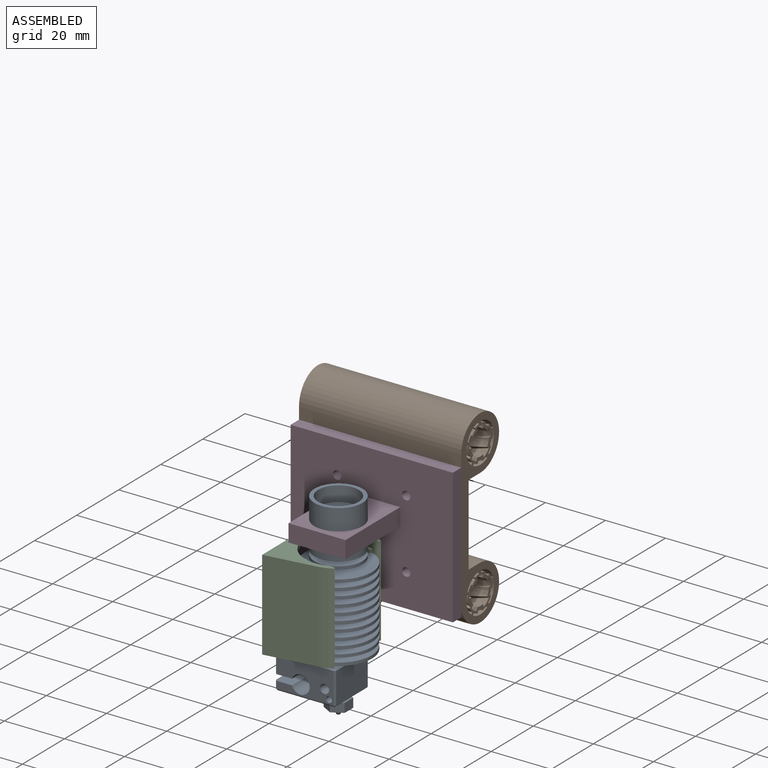
[diagram: assembled view]
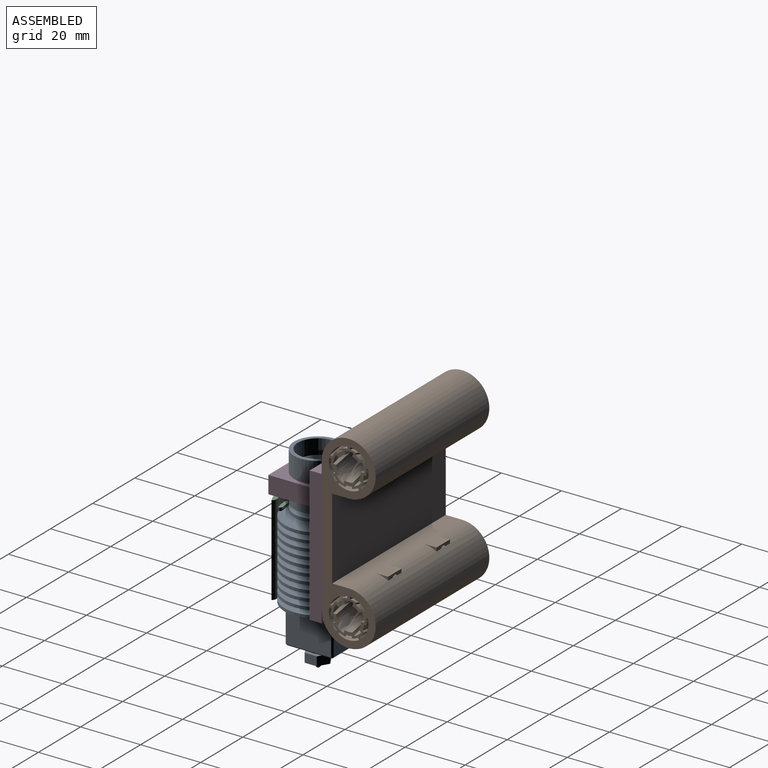
[diagram: assembled view, second angle]
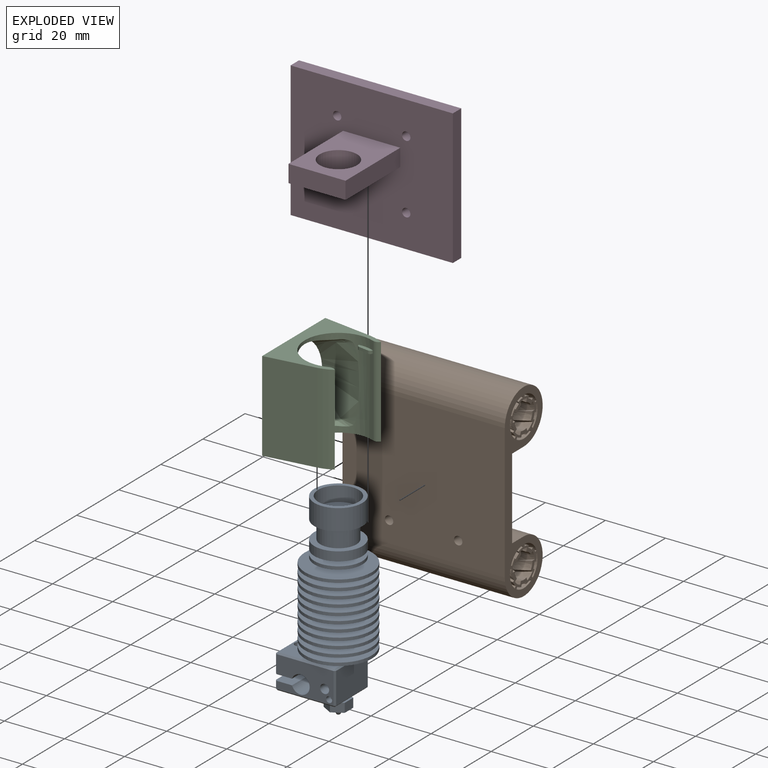
[diagram: exploded view]
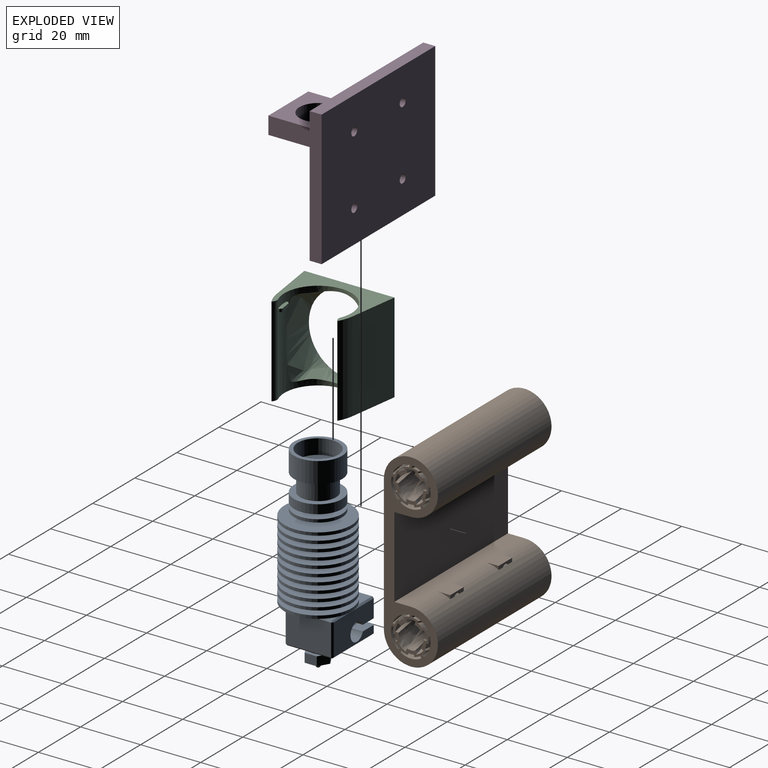
[diagram: exploded view, second angle]
ASSEMBLY  parts=4 mates=3
PART A: 111 faces, bbox 26.7x65.6x22.3 mm
  f0: plane 0.5x0.5mm, normal (-0.58,0.58,-0.58), area 0.2mm2, adj f18,f20,f21
  f1: plane 0.5x0.5mm, normal (0.58,0.58,-0.58), area 0.2mm2, adj f4,f17,f20
  f2: plane 0.5x0.5mm, normal (-0.58,0.58,0.58), area 0.2mm2, adj f6,f18,f19
  f3: plane 0.5x0.5mm, normal (0.58,-0.58,-0.58), area 0.2mm2, adj f4,f9,f16
  f4: plane 10.5x0.5mm, normal (0.71,0,-0.71), area 7.4mm2, adj f1,f3,f27,f51
  f5: plane 0.5x0.5mm, normal (0.58,0.58,0.58), area 0.2mm2, adj f6,f11,f17
  f6: plane 19x0.5mm, normal (0,0.71,0.71), area 13.4mm2, adj f2,f5,f22,f25
  f7: plane 0.5x0.5mm, normal (-0.58,-0.58,-0.58), area 0.2mm2, adj f8,f9,f14
  f8: plane 2.5x0.5mm, normal (-0.71,0,-0.71), area 1.8mm2, adj f7,f50,f51,f52
  f9: plane 19x0.5mm, normal (0,-0.71,-0.71), area 13.4mm2, adj f3,f7,f26,f51
  f10: plane 0.5x0.5mm, normal (0.58,-0.58,0.58), area 0.2mm2, adj f11,f15,f16
  f11: plane 10.5x0.5mm, normal (0.71,0,0.71), area 7.4mm2, adj f5,f10,f22,f27
  f12: plane 0.5x0.5mm, normal (-0.58,-0.58,0.58), area 0.2mm2, adj f13,f14,f15
  f13: plane 2.5x0.5mm, normal (-0.71,0,0.71), area 1.8mm2, adj f12,f22,f50,f52
  f14: plane 15x0.5mm, normal (-0.71,-0.71,0), area 10.6mm2, adj f7,f12,f26,f52
  f15: plane 19x0.5mm, normal (0,-0.71,0.71), area 13.4mm2, adj f10,f12,f22,f26
  f16: plane 15x0.5mm, normal (0.71,-0.71,0), area 10.6mm2, adj f3,f10,f26,f27
  f17: plane 15x0.5mm, normal (0.71,0.71,0), area 10.6mm2, adj f1,f5,f25,f27
  f18: plane 15x0.5mm, normal (-0.71,0.71,0), area 10.6mm2, adj f0,f2,f23,f25
  f19: plane 6x0.5mm, normal (-0.71,0,0.71), area 4.2mm2, adj f2,f22,f23,f24
  f20: plane 19x0.5mm, normal (0,0.71,-0.71), area 13.4mm2, adj f0,f1,f25,f51
  f21: plane 6x0.5mm, normal (-0.71,0,-0.71), area 4.2mm2, adj f0,f23,f24,f51
  f22: plane 19x10.5mm, normal (0,0,1), area 150.5mm2, adj f6,f11,f13,f15,f19,f24,f43,f47
  f23: plane 15x6mm, normal (-1,0,0), area 90mm2, adj f18,f19,f21,f24
  f24: plane 16x5.65mm, normal (0,-1,0), area 83mm2, adj f19,f21,f22,f23,f42,f49,f51
  f25: plane 19x15mm, normal (0,1,0), area 265.4mm2, adj f6,f17,f18,f20,f42,f53
  f26: plane 19x15mm, normal (0,-1,0), area 258.3mm2, adj f9,f14,f15,f16,f40,f41
  f27: plane 15x10.5mm, normal (1,0,0), area 157.5mm2, adj f4,f11,f16,f17
  f28: cylinder r=0.2mm len=3mm, axis (0,1,0), area 3.8mm2, adj f29,f30
  f29: plane 0.4x0.4mm, normal (0,-1,0), area 0.1mm2, adj f28
  f30: plane 1x1mm, normal (0,-1,0), area 0.7mm2, adj f28,f31
  f31: cone r=1.9mm half-angle=35deg, axis (0,1,0), area 18.4mm2, adj f30,f39
  f32: plane 8.08x7mm, normal (0,1,0), area 22.8mm2, adj f33,f34,f35,f36,f37,f38,f40
  f33: plane 3.5x3mm, normal (-0.5,0,0.87), area 12.1mm2, adj f32,f34,f38,f39
  f34: plane 3.5x3mm, normal (0.5,0,0.87), area 12.1mm2, adj f32,f33,f35,f39
  f35: plane 4.04x3mm, normal (1,0,0), area 12.1mm2, adj f32,f34,f36,f39
  f36: plane 3.5x3mm, normal (0.5,0,-0.87), area 12.1mm2, adj f32,f35,f37,f39
  f37: plane 3.5x3mm, normal (-0.5,0,-0.87), area 12.1mm2, adj f32,f36,f38,f39
  f38: plane 4.04x3mm, normal (-1,0,0), area 12.1mm2, adj f32,f33,f37,f39
  f39: plane 8.08x7mm, normal (0,-1,0), area 31.1mm2, adj f31,f33,f34,f35,f36,f37,f38
  f40: cylinder r=2.5mm len=5mm, axis (0,-1,0), area 15.7mm2, adj f26,f32
  f41: cylinder r=1.5mm len=3mm, axis (0,-1,0), area 28.3mm2, adj f26,f50
  f42: cylinder r=1.5mm len=6.5mm, axis (0,-1,0), area 61.3mm2, adj f24,f25
  f43: cylinder r=1mm len=2mm, axis (0,0,-1), area 12.6mm2, adj f22,f44
  f44: plane 2x2mm, normal (0,0,1), area 1.3mm2, adj f43,f45
  f45: cylinder r=0.78mm len=2.45mm, axis (0,0,-1), area 11.9mm2, adj f44,f46
  f46: plane 1.55x1.55mm, normal (0,0,1), area 1.9mm2, adj f45
  f47: cylinder r=1.5mm len=3.45mm, axis (0,0,-1), area 32.5mm2, adj f22,f48
  f48: plane 3x3mm, normal (0,0,1), area 7.1mm2, adj f47
  f49: cylinder r=3.02mm len=16mm, axis (0,0,-1), area 271.5mm2, adj f22,f24,f50,f51
  f50: plane 16x5.65mm, normal (0,1,0), area 83mm2, adj f8,f13,f22,f41,f49,f51,f52
  f51: plane 19x10.5mm, normal (0,0,-1), area 160.7mm2, adj f4,f8,f9,f20,f21,f24,f49,f50
  f52: plane 15x2.5mm, normal (-1,0,0), area 37.5mm2, adj f8,f13,f14,f50
  f53: cylinder r=2mm len=4mm, axis (0,-1,0), area 26.4mm2, adj f25,f110
  f54: cylinder r=6.75mm len=13.5mm, axis (0,-1,0), area 212.1mm2, adj f55,f56
  f55: plane 13.5x13.5mm, normal (0,1,0), area 143.1mm2, adj f54
  f56: plane 16x16mm, normal (0,1,0), area 57.9mm2, adj f54,f57
  f57: cylinder r=8mm len=16mm, axis (0,-1,0), area 351.9mm2, adj f56,f58
  f58: plane 16x16mm, normal (0,-1,0), area 88mm2, adj f57,f59
  f59: cylinder r=6mm len=12mm, axis (0,-1,0), area 226.2mm2, adj f58,f60
  f60: plane 16x16mm, normal (0,1,0), area 88mm2, adj f59,f61
  f61: cylinder r=8mm len=16mm, axis (0,-1,0), area 150.8mm2, adj f60,f62
  f62: plane 16x16mm, normal (0,-1,0), area 137.4mm2, adj f61,f63
  f63: cylinder r=4.5mm len=9mm, axis (0,-1,0), area 42.4mm2, adj f62,f64
  f64: plane 16x16mm, normal (0,1,0), area 137.4mm2, adj f63,f65
  f65: cylinder r=8mm len=16mm, axis (0,-1,0), area 50.3mm2, adj f64,f66
  f66: plane 16x16mm, normal (0,-1,0), area 137.4mm2, adj f65,f67
  f67: cylinder r=4.5mm len=9mm, axis (0,-1,0), area 42.4mm2, adj f66,f68
  f68: plane 22.3x22.3mm, normal (0,1,0), area 327mm2, adj f67,f69
  f69: cylinder r=11.15mm len=22.3mm, axis (0,-1,0), area 70.1mm2, adj f68,f70
  f70: plane 22.3x22.3mm, normal (0,-1,0), area 319.7mm2, adj f69,f71
  f71: cylinder r=4.75mm len=9.5mm, axis (0,-1,0), area 44.8mm2, adj f70,f72
  f72: plane 22.3x22.3mm, normal (0,1,0), area 319.7mm2, adj f71,f73
  f73: cylinder r=11.15mm len=22.3mm, axis (0,-1,0), area 70.1mm2, adj f72,f74
  f74: plane 22.3x22.3mm, normal (0,-1,0), area 312mm2, adj f73,f75
  f75: cylinder r=5mm len=10mm, axis (0,-1,0), area 47.1mm2, adj f74,f76
  f76: plane 22.3x22.3mm, normal (0,1,0), area 312mm2, adj f75,f77
  f77: cylinder r=11.15mm len=22.3mm, axis (0,-1,0), area 70.1mm2, adj f76,f78
  f78: plane 22.3x22.3mm, normal (0,-1,0), area 304mm2, adj f77,f79
  f79: cylinder r=5.25mm len=10.5mm, axis (0,-1,0), area 49.5mm2, adj f78,f80
  f80: plane 22.3x22.3mm, normal (0,1,0), area 304mm2, adj f79,f81
  f81: cylinder r=11.15mm len=22.3mm, axis (0,-1,0), area 70.1mm2, adj f80,f82
  f82: plane 22.3x22.3mm, normal (0,-1,0), area 295.5mm2, adj f81,f83
  f83: cylinder r=5.5mm len=11mm, axis (0,-1,0), area 51.8mm2, adj f82,f84
  f84: plane 22.3x22.3mm, normal (0,1,0), area 295.5mm2, adj f83,f85
  f85: cylinder r=11.15mm len=22.3mm, axis (0,-1,0), area 70.1mm2, adj f84,f86
  f86: plane 22.3x22.3mm, normal (0,-1,0), area 286.7mm2, adj f85,f87
  f87: cylinder r=5.75mm len=11.5mm, axis (0,-1,0), area 54.2mm2, adj f86,f88
  f88: plane 22.3x22.3mm, normal (0,1,0), area 286.7mm2, adj f87,f89
  f89: cylinder r=11.15mm len=22.3mm, axis (0,-1,0), area 70.1mm2, adj f88,f90
  f90: plane 22.3x22.3mm, normal (0,-1,0), area 277.5mm2, adj f89,f91
  f91: cylinder r=6mm len=12mm, axis (0,-1,0), area 56.5mm2, adj f90,f92
  f92: plane 22.3x22.3mm, normal (0,1,0), area 277.5mm2, adj f91,f93
  f93: cylinder r=11.15mm len=22.3mm, axis (0,-1,0), area 70.1mm2, adj f92,f94
  f94: plane 22.3x22.3mm, normal (0,-1,0), area 267.9mm2, adj f93,f95
  f95: cylinder r=6.25mm len=12.5mm, axis (0,-1,0), area 58.9mm2, adj f94,f96
  f96: plane 22.3x22.3mm, normal (0,1,0), area 267.9mm2, adj f95,f97
  f97: cylinder r=11.15mm len=22.3mm, axis (0,-1,0), area 70.1mm2, adj f96,f98
  f98: plane 22.3x22.3mm, normal (0,-1,0), area 257.8mm2, adj f97,f99
  f99: cylinder r=6.5mm len=13mm, axis (0,-1,0), area 61.3mm2, adj f98,f100
  f100: plane 22.3x22.3mm, normal (0,1,0), area 257.8mm2, adj f99,f101
  f101: cylinder r=11.15mm len=22.3mm, axis (0,-1,0), area 70.1mm2, adj f100,f102
  f102: plane 22.3x22.3mm, normal (0,-1,0), area 247.4mm2, adj f101,f103
  f103: cylinder r=6.75mm len=13.5mm, axis (0,-1,0), area 63.6mm2, adj f102,f104
  f104: plane 22.3x22.3mm, normal (0,1,0), area 247.4mm2, adj f103,f105
  f105: cylinder r=11.15mm len=22.3mm, axis (0,-1,0), area 70.1mm2, adj f104,f106
  f106: plane 22.3x22.3mm, normal (0,-1,0), area 236.6mm2, adj f105,f107
  f107: cylinder r=7mm len=14mm, axis (0,-1,0), area 66mm2, adj f106,f108
  f108: plane 22.3x22.3mm, normal (0,1,0), area 236.6mm2, adj f107,f109
  f109: cylinder r=11.15mm len=22.3mm, axis (0,-1,0), area 70.1mm2, adj f108,f110
  f110: plane 22.3x22.3mm, normal (0,-1,0), area 378mm2, adj f53,f109
PART B: 207 faces, bbox 18.3x63.3x54.3 mm
  f0: cylinder r=9mm len=54mm, axis (0,0,-1), area 2234.3mm2, adj f45,f49,f50,f51,f170,f171,f172,f173
  f1: bspline ~27x9.07mm, area 12.4mm2, adj f3,f22,f161,f176
  f2: bspline ~12.3x3.99mm, area 9.2mm2, adj f3,f50,f78,f178
  f3: bspline ~40.5x12.85mm, area 235.5mm2, adj f1,f2,f37,f50,f161,f176,f177,f178
  f4: bspline ~13.5x10.41mm, area 89.8mm2, adj f7,f15,f50,f186
  f5: bspline ~40.5x13.7mm, area 261.7mm2, adj f6,f51,f55,f184,f185
  f6: bspline ~40.5x9.15mm, area 26.3mm2, adj f5,f8,f51,f185
  f7: bspline ~13.5x3.85mm, area 9.2mm2, adj f4,f9,f50,f186
  f8: bspline ~40.5x10.08mm, area 75.2mm2, adj f6,f10,f51,f185
  f9: bspline ~13.5x5.25mm, area 26.2mm2, adj f7,f11,f50,f186
  f10: bspline ~35.3x9.71mm, area 26mm2, adj f8,f12,f51,f185
  f11: bspline ~13.5x4.13mm, area 9mm2, adj f9,f50,f52,f186
  f12: bspline ~40.5x9.95mm, area 70.5mm2, adj f10,f13,f51,f185
  f13: bspline ~35.3x10.04mm, area 26mm2, adj f12,f14,f51,f185
  f14: bspline ~40.5x11.43mm, area 76.3mm2, adj f13,f51,f55,f184,f185
  f15: bspline ~13.5x4.8mm, area 9.2mm2, adj f4,f50,f54,f186
  f16: bspline ~40.5x8.28mm, area 40.2mm2, adj f17,f51,f64,f179
  f17: bspline ~40.5x9.02mm, area 106.1mm2, adj f16,f18,f51,f168,f169,f179
  f18: bspline ~54x10.42mm, area 57.2mm2, adj f17,f50,f51,f66,f67,f168,f169,f179
  f19: bspline ~40.5x8.54mm, area 69.5mm2, adj f20,f21,f41,f50,f161,f176,f177
  f20: bspline ~20.25x5.85mm, area 11.1mm2, adj f19,f50,f78,f177
  f21: bspline ~27x8.28mm, area 12.2mm2, adj f19,f22,f161,f176
  f22: bspline ~27x9.69mm, area 35.4mm2, adj f1,f21,f161,f176
  f23: bspline ~13.5x3.58mm, area 14mm2, adj f24,f51,f67,f165
  f24: bspline ~13.5x6.43mm, area 38mm2, adj f23,f26,f51,f165
  f25: bspline ~47.25x10.11mm, area 43.9mm2, adj f27,f50,f69,f166
  f26: bspline ~12.3x3.64mm, area 14mm2, adj f24,f27,f51,f165
  f27: bspline ~54x8.54mm, area 146.9mm2, adj f25,f26,f50,f51,f70,f165,f166
  f28: bspline ~12.3x4.53mm, area 9.2mm2, adj f30,f34,f51,f162
  f29: bspline ~40.5x12.04mm, area 26.3mm2, adj f30,f50,f76,f164
  f30: bspline ~54x14.44mm, area 368.8mm2, adj f28,f29,f50,f51,f73,f162,f163,f164
  f31: bspline ~54x10.6mm, area 105.5mm2, adj f32,f33,f50,f51,f75,f162,f163
  f32: bspline ~40.5x10.68mm, area 27mm2, adj f31,f50,f76,f163
  f33: bspline ~13.5x4.43mm, area 9mm2, adj f31,f34,f51,f162
  f34: bspline ~13.5x6.4mm, area 26.2mm2, adj f28,f33,f51,f162
  f35: bspline ~20.25x10.04mm, area 96.5mm2, adj f36,f51,f77,f159,f160
  f36: bspline ~13.5x4.81mm, area 9.2mm2, adj f35,f38,f51,f160
  f37: bspline ~35.3x11.15mm, area 26.3mm2, adj f3,f39,f50,f161
  f38: bspline ~13.5x5.64mm, area 26.2mm2, adj f36,f40,f51,f160
  f39: bspline ~40.5x10.56mm, area 75.2mm2, adj f37,f41,f50,f161
  f40: bspline ~12.3x3.38mm, area 9mm2, adj f38,f42,f51,f160
  f41: bspline ~40.5x8.86mm, area 26mm2, adj f19,f39,f50,f161
  f42: bspline ~13.5x4.37mm, area 24.6mm2, adj f40,f43,f51,f160
  f43: bspline ~13.5x4.02mm, area 9mm2, adj f42,f44,f51,f160
  f44: bspline ~20.25x7.08mm, area 28.8mm2, adj f43,f51,f77,f159,f160
  f45: plane 54x10mm, normal (0,-1,0), area 354.6mm2, adj f0,f46,f50,f51,f170,f171,f172,f187
  f46: plane 54x27mm, normal (-1,0,0), area 1458mm2, adj f45,f47,f50,f51
  f47: plane 54x5.5mm, normal (0,1,0), area 297mm2, adj f46,f48,f50,f51
  f48: cylinder r=9mm len=54mm, axis (0,0,-1), area 2290.2mm2, adj f47,f49,f50,f51
  f49: plane 54x45mm, normal (1,0,0), area 2417.7mm2, adj f0,f48,f50,f51,f155,f157
  f50: plane 63.07x18.07mm, normal (0,0,1), area 438.9mm2, adj f0,f2,f3,f4,f7,f9,f11,f15
  f51: plane 63.07x18.07mm, normal (0,0,-1), area 438.9mm2, adj f0,f5,f6,f8,f10,f12,f13,f14
  f52: bspline ~13.5x5.58mm, area 24.6mm2, adj f11,f50,f53,f186
  f53: bspline ~13.5x4.51mm, area 9mm2, adj f50,f52,f54,f186
  f54: bspline ~13.5x6.34mm, area 26.2mm2, adj f15,f50,f53,f186
  f55: bspline ~40.5x11.59mm, area 28.9mm2, adj f5,f14,f51,f184
  f56: bspline ~54x8.4mm, area 146.9mm2, adj f50,f51,f57,f72
  f57: bspline ~54x10.42mm, area 61.6mm2, adj f50,f51,f56,f58
  f58: bspline ~54x10.61mm, area 166.7mm2, adj f50,f51,f57,f59
  f59: bspline ~54x9.56mm, area 61.6mm2, adj f50,f51,f58,f60
  f60: bspline ~54x8.2mm, area 146.9mm2, adj f50,f51,f59,f61
  f61: bspline ~54x10.17mm, area 61.6mm2, adj f50,f51,f60,f62
  f62: bspline ~54x10.76mm, area 161.7mm2, adj f50,f51,f61,f63,f182,f183
  f63: bspline ~54x10.17mm, area 58.5mm2, adj f50,f51,f62,f64,f182,f183
  f64: bspline ~54x8.2mm, area 135.2mm2, adj f16,f50,f51,f63,f65,f179,f180,f181
  f65: bspline ~13.5x3.55mm, area 14mm2, adj f50,f64,f66,f181
  f66: bspline ~20.25x6.32mm, area 38.3mm2, adj f18,f50,f65,f180,f181
  f67: bspline ~54x8.4mm, area 137.3mm2, adj f18,f23,f50,f51,f68,f165,f166,f167
  f68: bspline ~35.3x8.26mm, area 40.2mm2, adj f50,f67,f69,f167
  f69: bspline ~40.5x10.21mm, area 108.9mm2, adj f25,f50,f68,f166,f167
  f70: bspline ~54x10.12mm, area 61.6mm2, adj f27,f50,f51,f71
  f71: bspline ~54x10.32mm, area 166.7mm2, adj f50,f51,f70,f72
  f72: bspline ~54x9.35mm, area 61.6mm2, adj f50,f51,f56,f71
  f73: bspline ~54x12.21mm, area 40.2mm2, adj f30,f50,f51,f74
  f74: bspline ~54x11.81mm, area 115.1mm2, adj f50,f51,f73,f75
  f75: bspline ~54x11.81mm, area 39.7mm2, adj f31,f50,f51,f74
  f76: bspline ~40.5x11.53mm, area 75.3mm2, adj f29,f32,f50,f163,f164
  f77: bspline ~20.25x6.89mm, area 12.8mm2, adj f35,f44,f51,f159
  f78: bspline ~20.25x6.55mm, area 26.8mm2, adj f2,f20,f50,f177,f178
  f79: bspline ~54x13.73mm, area 394.5mm2, adj f50,f51,f80,f86
  f80: bspline ~54x13.26mm, area 39.9mm2, adj f50,f51,f79,f81,f174,f175
  f81: bspline ~54x11.94mm, area 114.8mm2, adj f50,f51,f80,f82,f174,f175
  f82: bspline ~54x11.24mm, area 39.7mm2, adj f50,f51,f81,f83
  f83: bspline ~54x10.06mm, area 107.9mm2, adj f50,f51,f82,f84
  f84: bspline ~54x10.21mm, area 39.7mm2, adj f50,f51,f83,f85
  f85: bspline ~54x11.51mm, area 115.1mm2, adj f50,f51,f84,f86
  f86: bspline ~54x12.71mm, area 40.2mm2, adj f50,f51,f79,f85
  f87: bspline ~54x14.23mm, area 394.5mm2, adj f50,f51,f88,f94
  f88: bspline ~54x13.01mm, area 40.2mm2, adj f50,f51,f87,f89
  f89: bspline ~54x12.04mm, area 115.1mm2, adj f50,f51,f88,f90
  f90: bspline ~54x11.86mm, area 39.7mm2, adj f50,f51,f89,f91
  f91: bspline ~54x10.5mm, area 107.9mm2, adj f50,f51,f90,f92
  f92: bspline ~54x11.06mm, area 39.7mm2, adj f50,f51,f91,f93
  f93: bspline ~54x11.22mm, area 115.1mm2, adj f50,f51,f92,f94
  f94: bspline ~54x11.63mm, area 40.2mm2, adj f50,f51,f87,f93
  f95: bspline ~54x13.73mm, area 394.5mm2, adj f50,f51,f96,f102
  f96: bspline ~54x13.26mm, area 40.2mm2, adj f50,f51,f95,f97
  f97: bspline ~54x11.94mm, area 115.1mm2, adj f50,f51,f96,f98
  f98: bspline ~54x11.24mm, area 39.7mm2, adj f50,f51,f97,f99
  f99: bspline ~54x10.06mm, area 107.9mm2, adj f50,f51,f98,f100
  f100: bspline ~54x10.21mm, area 39.7mm2, adj f50,f51,f99,f101
  f101: bspline ~54x11.51mm, area 115.1mm2, adj f50,f51,f100,f102
  f102: bspline ~54x12.71mm, area 40.2mm2, adj f50,f51,f95,f101
  f103: bspline ~54x8.4mm, area 146.9mm2, adj f50,f51,f104,f122
  f104: bspline ~54x10.42mm, area 61.6mm2, adj f50,f51,f103,f105
  f105: bspline ~54x10.61mm, area 166.7mm2, adj f50,f51,f104,f106
  f106: bspline ~54x9.56mm, area 61.6mm2, adj f50,f51,f105,f107
  f107: bspline ~54x8.2mm, area 146.9mm2, adj f50,f51,f106,f108
  f108: bspline ~54x10.17mm, area 61.6mm2, adj f50,f51,f107,f109
  f109: bspline ~54x10.76mm, area 166.7mm2, adj f50,f51,f108,f110
  f110: bspline ~54x10.17mm, area 61.6mm2, adj f50,f51,f109,f111
  f111: bspline ~54x8.2mm, area 146.9mm2, adj f50,f51,f110,f112
  f112: bspline ~54x9.56mm, area 61.6mm2, adj f50,f51,f111,f113
  f113: bspline ~54x10.61mm, area 166.7mm2, adj f50,f51,f112,f114
  f114: bspline ~54x10.42mm, area 61.6mm2, adj f50,f51,f113,f115
  f115: bspline ~54x8.4mm, area 146.9mm2, adj f50,f51,f114,f116
  f116: bspline ~54x9.35mm, area 61.6mm2, adj f50,f51,f115,f117
  f117: bspline ~54x10.32mm, area 166.7mm2, adj f50,f51,f116,f118
  f118: bspline ~54x10.12mm, area 61.6mm2, adj f50,f51,f117,f119
  f119: bspline ~54x8.54mm, area 146.9mm2, adj f50,f51,f118,f120
  f120: bspline ~54x10.12mm, area 61.6mm2, adj f50,f51,f119,f121
  f121: bspline ~54x10.32mm, area 166.7mm2, adj f50,f51,f120,f122
  f122: bspline ~54x9.35mm, area 61.6mm2, adj f50,f51,f103,f121
  f123: bspline ~54x14.23mm, area 394.5mm2, adj f50,f51,f124,f130
  f124: bspline ~54x11.63mm, area 40.2mm2, adj f50,f51,f123,f125
  f125: bspline ~54x11.22mm, area 115.1mm2, adj f50,f51,f124,f126
  f126: bspline ~54x11.06mm, area 39.7mm2, adj f50,f51,f125,f127
  f127: bspline ~54x10.5mm, area 107.9mm2, adj f50,f51,f126,f128
  f128: bspline ~54x11.86mm, area 39.7mm2, adj f50,f51,f127,f129
  f129: bspline ~54x12.04mm, area 115.1mm2, adj f50,f51,f128,f130
  f130: bspline ~54x13.01mm, area 40.2mm2, adj f50,f51,f123,f129
  f131: bspline ~54x13.26mm, area 40.2mm2, adj f50,f51,f132,f138
  f132: bspline ~54x13.73mm, area 394.5mm2, adj f50,f51,f131,f133
  f133: bspline ~54x12.71mm, area 40.2mm2, adj f50,f51,f132,f134
  f134: bspline ~54x11.51mm, area 115.1mm2, adj f50,f51,f133,f135
  f135: bspline ~54x10.21mm, area 39.7mm2, adj f50,f51,f134,f136
  f136: bspline ~54x10.06mm, area 107.9mm2, adj f50,f51,f135,f137
  f137: bspline ~54x11.24mm, area 39.7mm2, adj f50,f51,f136,f138
  f138: bspline ~54x11.94mm, area 115.1mm2, adj f50,f51,f131,f137
  f139: bspline ~54x14.23mm, area 394.5mm2, adj f50,f51,f140,f146
  f140: bspline ~54x13.01mm, area 40.2mm2, adj f50,f51,f139,f141
  f141: bspline ~54x12.04mm, area 115.1mm2, adj f50,f51,f140,f142
  f142: bspline ~54x11.86mm, area 39.7mm2, adj f50,f51,f141,f143
  f143: bspline ~54x10.5mm, area 107.9mm2, adj f50,f51,f142,f144
  f144: bspline ~54x11.06mm, area 39.7mm2, adj f50,f51,f143,f145
  f145: bspline ~54x11.22mm, area 115.1mm2, adj f50,f51,f144,f146
  f146: bspline ~54x11.63mm, area 40.2mm2, adj f50,f51,f139,f145
  f147: bspline ~54x12.21mm, area 40.2mm2, adj f50,f51,f148,f154
  f148: bspline ~54x14.44mm, area 394.5mm2, adj f50,f51,f147,f149
  f149: bspline ~54x12.21mm, area 40.2mm2, adj f50,f51,f148,f150
  f150: bspline ~54x11.81mm, area 115.1mm2, adj f50,f51,f149,f151
  f151: bspline ~54x11.81mm, area 39.7mm2, adj f50,f51,f150,f152
  f152: bspline ~54x10.6mm, area 107.9mm2, adj f50,f51,f151,f153
  f153: bspline ~54x11.81mm, area 39.7mm2, adj f50,f51,f152,f154
  f154: bspline ~54x11.81mm, area 115.1mm2, adj f50,f51,f147,f153
  f155: cylinder r=1.4mm len=3.5mm, axis (-1,0,0), area 30.8mm2, adj f49,f156
  f156: plane 2.8x2.8mm, normal (1,0,0), area 6.2mm2, adj f155
  f157: cylinder r=1.4mm len=3.5mm, axis (-1,0,0), area 30.8mm2, adj f49,f158
  f158: plane 2.8x2.8mm, normal (1,0,0), area 6.2mm2, adj f157
  f159: plane 5.99x1.08mm, normal (-1,0,0), area 5mm2, adj f35,f44,f77,f160
  f160: plane 4.66x2.87mm, normal (0,0,-1), area 5.1mm2, adj f35,f36,f38,f40,f42,f43,f44,f159
  f161: plane 6.92x2.26mm, normal (0,0,1), area 6.3mm2, adj f1,f3,f19,f21,f22,f37,f39,f41
  f162: plane 4.55x2.82mm, normal (0,0,-1), area 4.4mm2, adj f28,f30,f31,f33,f34,f163
  f163: plane 6.46x1.91mm, normal (0,1,0), area 10.5mm2, adj f30,f31,f32,f76,f162,f164
  f164: plane 2.45x1.94mm, normal (0,0,1), area 1.7mm2, adj f29,f30,f76,f163
  f165: plane 3.5x1.41mm, normal (0,0,-1), area 3.7mm2, adj f23,f24,f26,f27,f67,f166
  f166: plane 6.69x5.38mm, normal (0,1,0), area 25.7mm2, adj f25,f27,f67,f69,f165,f167
  f167: plane 5.1x1.34mm, normal (0,0,1), area 2.9mm2, adj f67,f68,f69,f166
  f168: plane 4.47x1.62mm, normal (0,1,0), area 3.4mm2, adj f17,f18,f169
  f169: plane 1.48x0.77mm, normal (0,0,1), area 0.6mm2, adj f17,f18,f168
  f170: plane 4.5x1.21mm, normal (0,0,1), area 1.8mm2, adj f0,f45,f172
  f171: plane 4.5x1.21mm, normal (0,0,-1), area 1.8mm2, adj f0,f45,f172
  f172: plane 6.4x1.21mm, normal (-1,0,0), area 6.7mm2, adj f0,f45,f170,f171,f173
  f173: cylinder r=1.4mm len=2.31mm, axis (1,0,0), area 2.2mm2, adj f0,f172
  f174: plane 1.35x0.67mm, normal (-1,0,0), area 0.4mm2, adj f80,f81,f175
  f175: plane 0.64x0.31mm, normal (0,0,1), area 0.1mm2, adj f80,f81,f174
  f176: plane 4.05x2.69mm, normal (0,0,-1), area 3.8mm2, adj f1,f3,f19,f21,f22,f177
  f177: plane 6.46x1.91mm, normal (0,1,0), area 9.1mm2, adj f3,f19,f20,f78,f176,f178
  f178: plane 2.02x1.62mm, normal (0,0,1), area 1.3mm2, adj f2,f3,f78,f177
  f179: plane 3.89x1.41mm, normal (0,0,-1), area 3.6mm2, adj f16,f17,f18,f64,f180
  f180: plane 6.59x5.28mm, normal (0,1,0), area 28.3mm2, adj f18,f64,f66,f179,f181
  f181: plane 5.1x1.26mm, normal (0,0,1), area 2.5mm2, adj f64,f65,f66,f180
  f182: plane 5.97x2.11mm, normal (0,1,0), area 5.7mm2, adj f62,f63,f183
  f183: plane 1.87x0.96mm, normal (0,0,1), area 1mm2, adj f62,f63,f182
  f184: plane 4.58x1.07mm, normal (-1,0,0), area 3.6mm2, adj f5,f14,f55,f185
  f185: plane 5.21x2.87mm, normal (0,0,-1), area 5.4mm2, adj f5,f6,f8,f10,f12,f13,f14,f184
  f186: plane 6.99x1.96mm, normal (0,0,1), area 6.3mm2, adj f4,f7,f9,f11,f15,f52,f53,f54
  f187: plane 4.5x1.21mm, normal (0,0,-1), area 1.8mm2, adj f0,f45,f189
  f188: plane 4.5x1.21mm, normal (0,0,1), area 1.8mm2, adj f0,f45,f189
  f189: plane 6.4x1.21mm, normal (-1,0,0), area 6.7mm2, adj f0,f45,f187,f188,f190
  f190: cylinder r=1.4mm len=2.31mm, axis (1,0,0), area 2.2mm2, adj f0,f189
  f191: bspline ~7.06x6.75mm, area 0mm2, adj f192,f193
  f192: cylinder r=1.4mm len=1.94mm, axis (1,0,0), area 0mm2, adj f191,f193
  f193: bspline ~6.75x2.53mm, area 0mm2, adj f191,f192
  f194: bspline ~6.75x2.27mm, area 0mm2, adj f195,f198
  f195: cylinder r=1.4mm len=5.74mm, axis (1,0,0), area 12.1mm2, adj f194,f196,f197,f198
  f196: bspline ~8.44x6.75mm, area 13mm2, adj f195,f197
  f197: bspline ~6.75x2.53mm, area 1.2mm2, adj f195,f196,f198
  f198: bspline ~6.75x4.34mm, area 2.7mm2, adj f194,f195,f197
  f199: bspline ~7.48x6.75mm, area 2.4mm2, adj f200,f201
  f200: bspline ~6.75x2.5mm, area 0mm2, adj f199,f201
  f201: cylinder r=1.4mm len=2.27mm, axis (1,0,0), area 0mm2, adj f199,f200
  f202: bspline ~6.75x2.29mm, area 0mm2, adj f203,f206
  f203: bspline ~6.75x4.32mm, area 3.1mm2, adj f202,f204,f206
  f204: bspline ~6.75x2.53mm, area 1.5mm2, adj f203,f205,f206
  f205: bspline ~8.66x6.75mm, area 11.7mm2, adj f204,f206
  f206: cylinder r=1.4mm len=5.26mm, axis (1,0,0), area 10.3mm2, adj f202,f203,f204,f205
PART C: 40 faces, bbox 21.4x30x30.2 mm
  f0: cylinder r=11.2mm len=30mm, axis (0,0,-1), area 449.2mm2, adj f6,f7,f16,f17,f18,f19,f20,f21
  f1: plane 30x30mm, normal (-1,0,0), area 299.2mm2, adj f2,f5,f6,f7,f8,f10,f12,f14
  f2: plane 30x16.68mm, normal (0.14,-0.99,0), area 505.5mm2, adj f1,f3,f6,f7
  f3: cylinder r=12.75mm len=30mm, axis (0,0,-1), area 149.6mm2, adj f2,f6,f7,f24
  f4: cylinder r=12.75mm len=30mm, axis (0,0,-1), area 149.6mm2, adj f5,f6,f7,f25
  f5: plane 30x16.68mm, normal (0.14,0.99,0), area 505.5mm2, adj f1,f4,f6,f7
  f6: plane 30x21.36mm, normal (0,0,1), area 236.6mm2, adj f0,f1,f2,f3,f4,f5,f24,f25
  f7: plane 30x21.36mm, normal (0,0,-1), area 236.6mm2, adj f0,f1,f2,f3,f4,f5,f24,f25
  f8: cylinder r=1.5mm len=7mm, axis (-1,0,0), area 66mm2, adj f1,f9
  f9: plane 3x3mm, normal (-1,0,0), area 7.1mm2, adj f8
  f10: cylinder r=1.5mm len=7mm, axis (-1,0,0), area 66mm2, adj f1,f11
  f11: plane 3x3mm, normal (-1,0,0), area 7.1mm2, adj f10
  f12: cylinder r=1.5mm len=7mm, axis (-1,0,0), area 66mm2, adj f1,f13
  f13: plane 3x3mm, normal (-1,0,0), area 7.1mm2, adj f12
  f14: cylinder r=1.5mm len=7mm, axis (-1,0,0), area 66mm2, adj f1,f15
  f15: plane 3x3mm, normal (-1,0,0), area 7.1mm2, adj f14
  f16: bspline ~22x14.88mm, area 108.6mm2, adj f0,f1,f22,f23
  f17: bspline ~30x14.88mm, area 283.3mm2, adj f0,f1,f21,f22
  f18: bspline ~22x14.88mm, area 108.6mm2, adj f0,f1,f20,f21
  f19: bspline ~30x14.88mm, area 283.3mm2, adj f0,f1,f20,f23
  f20: bspline ~15.77x5.57mm, area 7.9mm2, adj f0,f18,f19
  f21: bspline ~15.77x5.57mm, area 7.9mm2, adj f0,f17,f18
  f22: bspline ~15.77x5.57mm, area 7.9mm2, adj f0,f16,f17
  f23: bspline ~15.77x5.57mm, area 7.9mm2, adj f0,f16,f19
  f24: cylinder r=2mm len=30mm, axis (0,0,-1), area 76.2mm2, adj f0,f3,f6,f7,f27
  f25: cylinder r=2mm len=30mm, axis (0,0,-1), area 76.2mm2, adj f0,f4,f6,f7,f33
  f26: plane 1x0.13mm, normal (-1,0,0), area 0.1mm2, adj f0,f30,f31,f32
  f27: plane 1x0.2mm, normal (0.93,0.37,0), area 0.2mm2, adj f24,f28,f31,f32
  f28: cylinder r=1mm len=1.07mm, axis (0,0,-1), area 1.3mm2, adj f27,f29,f31,f32
  f29: plane 3.15x1mm, normal (-0.14,0.99,0), area 3.2mm2, adj f28,f30,f31,f32
  f30: cylinder r=1mm len=1mm, axis (0,0,-1), area 1.4mm2, adj f26,f29,f31,f32
  f31: plane 5.16x1.63mm, normal (0,0,1), area 5.7mm2, adj f0,f26,f27,f28,f29,f30
  f32: plane 5.16x1.63mm, normal (0,0,-1), area 5.7mm2, adj f0,f26,f27,f28,f29,f30
  f33: plane 1x0.2mm, normal (0.93,-0.37,0), area 0.2mm2, adj f25,f37,f38,f39
  f34: plane 1x0.13mm, normal (-1,0,0), area 0.1mm2, adj f0,f35,f38,f39
  f35: cylinder r=1mm len=1mm, axis (0,0,-1), area 1.4mm2, adj f34,f36,f38,f39
  f36: plane 3.15x1mm, normal (-0.14,-0.99,0), area 3.2mm2, adj f35,f37,f38,f39
  f37: cylinder r=1mm len=1.07mm, axis (0,0,-1), area 1.3mm2, adj f33,f36,f38,f39
  f38: plane 5.16x1.63mm, normal (0,0,1), area 5.7mm2, adj f0,f33,f34,f35,f36,f37
  f39: plane 5.16x1.63mm, normal (0,0,-1), area 5.7mm2, adj f0,f33,f34,f35,f36,f37
PART D: 16 faces, bbox 45x54x30 mm
  f0: plane 54x4mm, normal (1,0,0), area 216mm2, adj f1,f7,f8,f9
  f1: plane 45x4mm, normal (0,1,0), area 180mm2, adj f0,f2,f8,f9
  f2: plane 54x4mm, normal (-1,0,0), area 216mm2, adj f1,f7,f8,f9
  f3: cylinder r=1.4mm len=4mm, axis (0,0,-1), area 35.2mm2, adj f8,f9
  f4: cylinder r=1.4mm len=4mm, axis (0,0,-1), area 35.2mm2, adj f8,f9
  f5: cylinder r=1.4mm len=4mm, axis (0,0,-1), area 35.2mm2, adj f8,f9
  f6: cylinder r=1.4mm len=4mm, axis (0,0,-1), area 35.2mm2, adj f8,f9
  f7: plane 45x4mm, normal (0,-1,0), area 180mm2, adj f0,f2,f8,f9
  f8: plane 54x45mm, normal (0,0,1), area 2295.2mm2, adj f0,f1,f2,f3,f4,f5,f6,f7
  f9: plane 54x45mm, normal (0,0,-1), area 2405.4mm2, adj f0,f1,f2,f3,f4,f5,f6,f7
  f10: plane 19x5.8mm, normal (0,0,1), area 110.2mm2, adj f11,f12,f13,f14
  f11: plane 26x5.8mm, normal (0,1,0), area 150.8mm2, adj f8,f10,f12,f14
  f12: plane 26x19mm, normal (1,0,0), area 373.2mm2, adj f8,f10,f11,f13,f15
  f13: plane 26x5.8mm, normal (0,-1,0), area 150.8mm2, adj f8,f10,f12,f14
  f14: plane 26x19mm, normal (-1,0,0), area 373.2mm2, adj f8,f10,f11,f13,f15
  f15: cylinder r=6.2mm len=12.4mm, axis (-1,0,0), area 225.9mm2, adj f12,f14
PLACE A rot(axis=(1,0,0),90deg) t=(-5.9,-7.06,83.06)mm
PLACE B rot(axis=(-0.58,0.58,-0.58),120deg) t=(-33.02,30.94,125.41)mm
PLACE C t=(-5.9,-7.06,73.41)mm
PLACE D rot(axis=(0.58,0.58,-0.58),120deg) t=(-33.02,12.94,112.41)mm
MATE fastened C.f0 <-> A.f53  axis (0,0,-1) through (-5.9,-7.06,58.41)mm
MATE fastened A.f53 <-> D.f15  axis (0,0,-1) through (-5.9,-7.06,97.41)mm
MATE fastened D.f4 <-> B.f155  axis (0,1,0) through (5.48,12.94,78.41)mm
